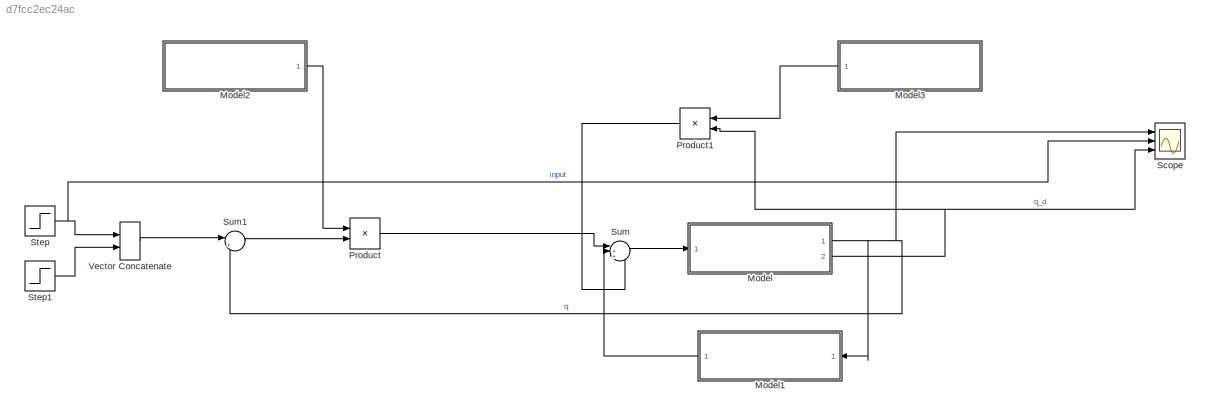
MODEL slx_d7fcc2ec24ac
KIND model
CONFIG AbsTol = auto
CONFIG EnableMultiTasking = off
CONFIG FixedStep = auto
CONFIG MaxStep = auto
CONFIG MinStep = auto
CONFIG RelTol = 1e-3
CONFIG SampleTimeConstraint = Unconstrained
CONFIG SolverName = VariableStepAuto
CONFIG StartTime = 0.0
CONFIG StopTime = 10.0
BLOCK [ModelReference] Model
  ModelNameDialog = two_link_model.slx
  ModelReferenceVersion = 1.3
  Ports = [1, 2]
BLOCK [ModelReference] Model1
  ModelNameDialog = g_vector.slx
  ModelReferenceVersion = 1.8
  Ports = [1, 1]
BLOCK [ModelReference] Model2
  ModelNameDialog = Kp_matrix.slx
  ModelReferenceVersion = 1.3
  Ports = [0, 1]
BLOCK [ModelReference] Model3
  ModelNameDialog = Kd_matrix.slx
  ModelReferenceVersion = 1.2
  Ports = [0, 1]
BLOCK [Product] Product
  Multiplication = Matrix(*)
  Ports = [2, 1]
BLOCK [Product] Product1
  Multiplication = Matrix(*)
  Ports = [2, 1]
BLOCK [Scope] Scope
  Floating = off
  NumInputPorts = 3
  Ports = [3]
  ScopeSpecificationString = Simulink.scopes.TimeScopeBlockCfg('CurrentConfiguration', extmgr.ConfigurationSet(extmgr.Configuration('Core','General UI',true),extmgr.Configuration('Core','Source UI',true),extmgr.Configuration('Sources','WiredSimulink',true),extmgr.Configuration('Visuals','Time Domain',true,'SerializedDisplays',{struct('MinYLimReal','-0.19635','MaxYLimReal','1.76715','YLabelReal','','MinYLimMag','0.00000','MaxY...<+1754ch>
BLOCK [Step] Step
  After = pi/2
  SampleTime = 0.1
BLOCK [Step] Step1
  After = pi/2
  SampleTime = 0.1
BLOCK [Sum] Sum
  Inputs = |++-
  Ports = [3, 1]
BLOCK [Sum] Sum1
  Inputs = |+-
  Ports = [2, 1]
BLOCK [Concatenate] Vector Concatenate
  Ports = [2, 1]
LINE Model1:1 -> Sum:2
LINE Model2:1 -> Product:1
LINE Model3:1 -> Product1:1
NET Model:1 -> Model1:1, Scope:1, Sum1:2
NET Model:2 -> Product1:2, Scope:3
LINE Product1:1 -> Sum:3
LINE Product:1 -> Sum:1
LINE Step1:1 -> Vector Concatenate:2
NET Step:1 -> Scope:2, Vector Concatenate:1
LINE Sum1:1 -> Product:2
LINE Sum:1 -> Model:1
LINE Vector Concatenate:1 -> Sum1:1
note: NET lines group one-source signal fan-out (src -> all destinations, sorted); 1:1 wires keep LINE
